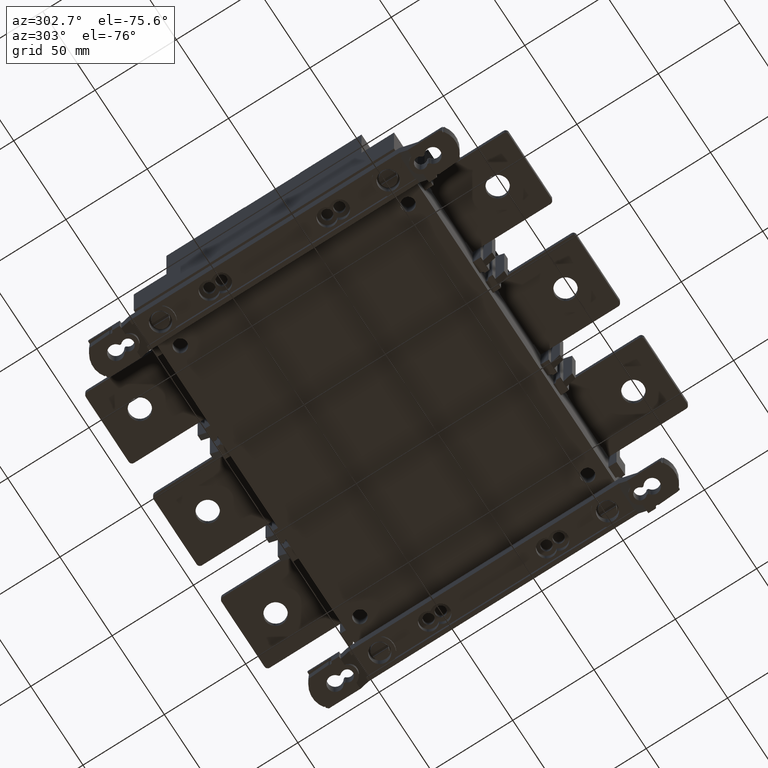
[diagram: clean part render]
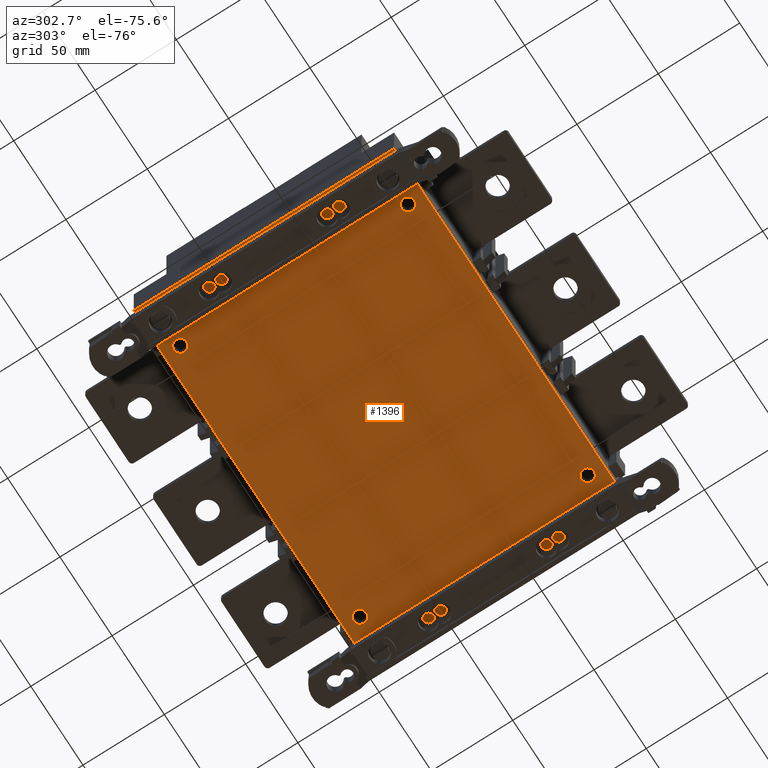
[diagram: same view with one face highlighted and labeled with its STEP entity id]
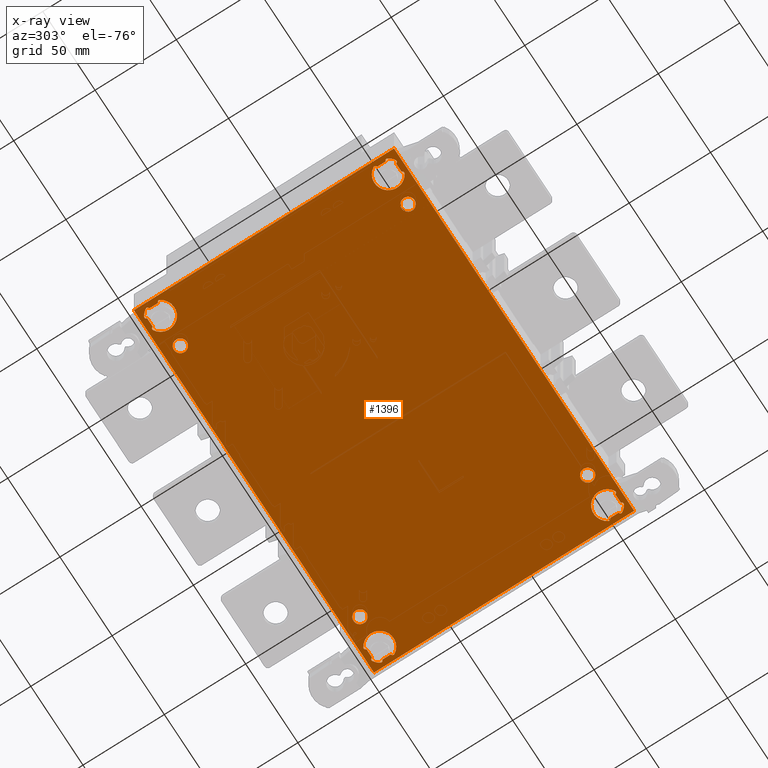
[diagram: x-ray of the same camera — body ghosted, the highlighted face saturated]
A machine part, auxiliary view. The second image highlights one B-rep face of the part: STEP entity #1396.
The next image is the same camera in x-ray: the body ghosted, the highlighted face saturated — about 0% of this face is hidden behind the body in this view.
In plain terms, the highlighted planar face has unit normal (0, 0, -1).
Its self-contained STEP definition (entity closure, byte-faithful):
#833=FACE_BOUND('',#3570,.T.);
#834=FACE_BOUND('',#3571,.T.);
#835=FACE_BOUND('',#3572,.T.);
#836=FACE_BOUND('',#3573,.T.);
#837=FACE_BOUND('',#3574,.T.);
#838=FACE_BOUND('',#3575,.T.);
#839=FACE_BOUND('',#3576,.T.);
#840=FACE_BOUND('',#3577,.T.);
#841=FACE_BOUND('',#3578,.T.);
#1396=ADVANCED_FACE('',(#833,#834,#835,#836,#837,#838,#839,#840,#841),#2049,
 .T.);
#2049=PLANE('',#15691);
#3570=EDGE_LOOP('',(#6597));
#3571=EDGE_LOOP('',(#6598,#6599,#6600,#6601));
#3572=EDGE_LOOP('',(#6602));
#3573=EDGE_LOOP('',(#6603,#6604,#6605,#6606,#6607,#6608,#6609,#6610,#6611,
#6612,#6613,#6614,#6615,#6616,#6617,#6618));
#3574=EDGE_LOOP('',(#6619,#6620,#6621,#6622,#6623,#6624,#6625,#6626,#6627,
#6628,#6629,#6630,#6631,#6632,#6633,#6634));
#3575=EDGE_LOOP('',(#6635));
#3576=EDGE_LOOP('',(#6636));
#3577=EDGE_LOOP('',(#6637,#6638,#6639,#6640,#6641,#6642,#6643,#6644,#6645,
#6646,#6647,#6648,#6649,#6650,#6651,#6652));
#3578=EDGE_LOOP('',(#6653,#6654,#6655,#6656,#6657,#6658,#6659,#6660,#6661,
#6662,#6663,#6664,#6665,#6666,#6667,#6668));
#4350=CIRCLE('',#15647,3.975);
#4351=CIRCLE('',#15648,3.975);
#4352=CIRCLE('',#15649,1.);
#4353=CIRCLE('',#15650,0.499999999999958);
#4354=CIRCLE('',#15651,0.5);
#4355=CIRCLE('',#15652,1.);
#4356=CIRCLE('',#15653,8.5);
#4357=CIRCLE('',#15654,1.);
#4358=CIRCLE('',#15655,0.499999999999956);
#4359=CIRCLE('',#15656,0.5);
#4360=CIRCLE('',#15657,1.);
#4361=CIRCLE('',#15658,8.5);
#4362=CIRCLE('',#15659,1.00000000000036);
#4363=CIRCLE('',#15660,8.5);
#4364=CIRCLE('',#15661,1.);
#4365=CIRCLE('',#15662,0.49999999999996);
#4366=CIRCLE('',#15663,0.499999999999982);
#4367=CIRCLE('',#15664,1.00000000000002);
#4368=CIRCLE('',#15665,8.5);
#4369=CIRCLE('',#15666,0.999999999999957);
#4370=CIRCLE('',#15667,0.499999999970015);
#4371=CIRCLE('',#15668,0.49999999999999);
#4372=CIRCLE('',#15669,3.975);
#4373=CIRCLE('',#15670,3.975);
#4374=CIRCLE('',#15671,1.);
#4375=CIRCLE('',#15672,8.5);
#4376=CIRCLE('',#15673,1.);
#4377=CIRCLE('',#15674,0.5);
#4378=CIRCLE('',#15675,0.499999999999956);
#4379=CIRCLE('',#15676,1.);
#4380=CIRCLE('',#15677,8.5);
#4381=CIRCLE('',#15678,1.);
#4382=CIRCLE('',#15679,0.5);
#4383=CIRCLE('',#15680,0.499999999999958);
#4384=CIRCLE('',#15681,0.49999999999999);
#4385=CIRCLE('',#15682,0.499999999970015);
#4386=CIRCLE('',#15683,0.999999999999957);
#4387=CIRCLE('',#15684,8.5);
#4388=CIRCLE('',#15685,1.00000000000002);
#4389=CIRCLE('',#15686,0.499999999999982);
#4390=CIRCLE('',#15687,0.49999999999996);
#4391=CIRCLE('',#15688,1.);
#4392=CIRCLE('',#15689,8.5);
#4393=CIRCLE('',#15690,1.00000000000036);
#6597=ORIENTED_EDGE('',*,*,#11096,.T.);
#6598=ORIENTED_EDGE('',*,*,#11097,.T.);
#6599=ORIENTED_EDGE('',*,*,#10748,.F.);
#6600=ORIENTED_EDGE('',*,*,#11098,.F.);
#6601=ORIENTED_EDGE('',*,*,#10641,.T.);
#6602=ORIENTED_EDGE('',*,*,#11099,.T.);
#6603=ORIENTED_EDGE('',*,*,#11100,.F.);
#6604=ORIENTED_EDGE('',*,*,#11101,.F.);
#6605=ORIENTED_EDGE('',*,*,#11102,.F.);
#6606=ORIENTED_EDGE('',*,*,#11103,.F.);
#6607=ORIENTED_EDGE('',*,*,#11104,.F.);
#6608=ORIENTED_EDGE('',*,*,#11105,.F.);
#6609=ORIENTED_EDGE('',*,*,#11106,.F.);
#6610=ORIENTED_EDGE('',*,*,#11107,.F.);
#6611=ORIENTED_EDGE('',*,*,#11108,.F.);
#6612=ORIENTED_EDGE('',*,*,#11109,.F.);
#6613=ORIENTED_EDGE('',*,*,#11110,.F.);
#6614=ORIENTED_EDGE('',*,*,#11111,.F.);
#6615=ORIENTED_EDGE('',*,*,#11112,.F.);
#6616=ORIENTED_EDGE('',*,*,#11113,.F.);
#6617=ORIENTED_EDGE('',*,*,#11114,.F.);
#6618=ORIENTED_EDGE('',*,*,#11115,.F.);
#6619=ORIENTED_EDGE('',*,*,#11116,.T.);
#6620=ORIENTED_EDGE('',*,*,#11117,.T.);
#6621=ORIENTED_EDGE('',*,*,#11118,.T.);
#6622=ORIENTED_EDGE('',*,*,#11119,.T.);
#6623=ORIENTED_EDGE('',*,*,#11120,.T.);
#6624=ORIENTED_EDGE('',*,*,#11121,.T.);
#6625=ORIENTED_EDGE('',*,*,#11122,.T.);
#6626=ORIENTED_EDGE('',*,*,#11123,.T.);
#6627=ORIENTED_EDGE('',*,*,#11124,.T.);
#6628=ORIENTED_EDGE('',*,*,#11125,.T.);
#6629=ORIENTED_EDGE('',*,*,#11126,.T.);
#6630=ORIENTED_EDGE('',*,*,#11127,.T.);
#6631=ORIENTED_EDGE('',*,*,#11128,.T.);
#6632=ORIENTED_EDGE('',*,*,#11129,.T.);
#6633=ORIENTED_EDGE('',*,*,#11130,.T.);
#6634=ORIENTED_EDGE('',*,*,#11131,.T.);
#6635=ORIENTED_EDGE('',*,*,#11132,.F.);
#6636=ORIENTED_EDGE('',*,*,#11133,.F.);
#6637=ORIENTED_EDGE('',*,*,#11134,.T.);
#6638=ORIENTED_EDGE('',*,*,#11135,.T.);
#6639=ORIENTED_EDGE('',*,*,#11136,.T.);
#6640=ORIENTED_EDGE('',*,*,#11137,.T.);
#6641=ORIENTED_EDGE('',*,*,#11138,.T.);
#6642=ORIENTED_EDGE('',*,*,#11139,.T.);
#6643=ORIENTED_EDGE('',*,*,#11140,.T.);
#6644=ORIENTED_EDGE('',*,*,#11141,.T.);
#6645=ORIENTED_EDGE('',*,*,#11142,.T.);
#6646=ORIENTED_EDGE('',*,*,#11143,.T.);
#6647=ORIENTED_EDGE('',*,*,#11144,.T.);
#6648=ORIENTED_EDGE('',*,*,#11145,.T.);
#6649=ORIENTED_EDGE('',*,*,#11146,.T.);
#6650=ORIENTED_EDGE('',*,*,#11147,.T.);
#6651=ORIENTED_EDGE('',*,*,#11148,.T.);
#6652=ORIENTED_EDGE('',*,*,#11149,.T.);
#6653=ORIENTED_EDGE('',*,*,#11150,.F.);
#6654=ORIENTED_EDGE('',*,*,#11151,.F.);
#6655=ORIENTED_EDGE('',*,*,#11152,.F.);
#6656=ORIENTED_EDGE('',*,*,#11153,.F.);
#6657=ORIENTED_EDGE('',*,*,#11154,.F.);
#6658=ORIENTED_EDGE('',*,*,#11155,.F.);
#6659=ORIENTED_EDGE('',*,*,#11156,.F.);
#6660=ORIENTED_EDGE('',*,*,#11157,.F.);
#6661=ORIENTED_EDGE('',*,*,#11158,.F.);
#6662=ORIENTED_EDGE('',*,*,#11159,.F.);
#6663=ORIENTED_EDGE('',*,*,#11160,.F.);
#6664=ORIENTED_EDGE('',*,*,#11161,.F.);
#6665=ORIENTED_EDGE('',*,*,#11162,.F.);
#6666=ORIENTED_EDGE('',*,*,#11163,.F.);
#6667=ORIENTED_EDGE('',*,*,#11164,.F.);
#6668=ORIENTED_EDGE('',*,*,#11165,.F.);
#9061=VERTEX_POINT('',#22038);
#9062=VERTEX_POINT('',#22040);
#9137=VERTEX_POINT('',#22246);
#9138=VERTEX_POINT('',#22248);
#9396=VERTEX_POINT('',#23108);
#9397=VERTEX_POINT('',#23112);
#9398=VERTEX_POINT('',#23114);
#9399=VERTEX_POINT('',#23115);
#9400=VERTEX_POINT('',#23117);
#9401=VERTEX_POINT('',#23119);
#9402=VERTEX_POINT('',#23121);
#9403=VERTEX_POINT('',#23123);
#9404=VERTEX_POINT('',#23125);
#9405=VERTEX_POINT('',#23127);
#9406=VERTEX_POINT('',#23129);
#9407=VERTEX_POINT('',#23131);
#9408=VERTEX_POINT('',#23133);
#9409=VERTEX_POINT('',#23135);
#9410=VERTEX_POINT('',#23137);
#9411=VERTEX_POINT('',#23139);
#9412=VERTEX_POINT('',#23141);
#9413=VERTEX_POINT('',#23143);
#9414=VERTEX_POINT('',#23146);
#9415=VERTEX_POINT('',#23147);
#9416=VERTEX_POINT('',#23149);
#9417=VERTEX_POINT('',#23151);
#9418=VERTEX_POINT('',#23153);
#9419=VERTEX_POINT('',#23155);
#9420=VERTEX_POINT('',#23157);
#9421=VERTEX_POINT('',#23159);
#9422=VERTEX_POINT('',#23161);
#9423=VERTEX_POINT('',#23163);
#9424=VERTEX_POINT('',#23165);
#9425=VERTEX_POINT('',#23167);
#9426=VERTEX_POINT('',#23169);
#9427=VERTEX_POINT('',#23171);
#9428=VERTEX_POINT('',#23173);
#9429=VERTEX_POINT('',#23175);
#9430=VERTEX_POINT('',#23178);
#9431=VERTEX_POINT('',#23180);
#9432=VERTEX_POINT('',#23182);
#9433=VERTEX_POINT('',#23183);
#9434=VERTEX_POINT('',#23185);
#9435=VERTEX_POINT('',#23187);
#9436=VERTEX_POINT('',#23189);
#9437=VERTEX_POINT('',#23191);
#9438=VERTEX_POINT('',#23193);
#9439=VERTEX_POINT('',#23195);
#9440=VERTEX_POINT('',#23197);
#9441=VERTEX_POINT('',#23199);
#9442=VERTEX_POINT('',#23201);
#9443=VERTEX_POINT('',#23203);
#9444=VERTEX_POINT('',#23205);
#9445=VERTEX_POINT('',#23207);
#9446=VERTEX_POINT('',#23209);
#9447=VERTEX_POINT('',#23211);
#9448=VERTEX_POINT('',#23214);
#9449=VERTEX_POINT('',#23215);
#9450=VERTEX_POINT('',#23217);
#9451=VERTEX_POINT('',#23219);
#9452=VERTEX_POINT('',#23221);
#9453=VERTEX_POINT('',#23223);
#9454=VERTEX_POINT('',#23225);
#9455=VERTEX_POINT('',#23227);
#9456=VERTEX_POINT('',#23229);
#9457=VERTEX_POINT('',#23231);
#9458=VERTEX_POINT('',#23233);
#9459=VERTEX_POINT('',#23235);
#9460=VERTEX_POINT('',#23237);
#9461=VERTEX_POINT('',#23239);
#9462=VERTEX_POINT('',#23241);
#9463=VERTEX_POINT('',#23243);
#10641=EDGE_CURVE('',#9062,#9061,#12374,.T.);
#10748=EDGE_CURVE('',#9137,#9138,#12476,.T.);
#11096=EDGE_CURVE('',#9396,#9396,#4350,.T.);
#11097=EDGE_CURVE('',#9061,#9138,#12715,.T.);
#11098=EDGE_CURVE('',#9062,#9137,#12716,.T.);
#11099=EDGE_CURVE('',#9397,#9397,#4351,.T.);
#11100=EDGE_CURVE('',#9398,#9399,#4352,.T.);
#11101=EDGE_CURVE('',#9400,#9398,#12717,.T.);
#11102=EDGE_CURVE('',#9401,#9400,#4353,.T.);
#11103=EDGE_CURVE('',#9402,#9401,#12718,.T.);
#11104=EDGE_CURVE('',#9403,#9402,#4354,.T.);
#11105=EDGE_CURVE('',#9404,#9403,#12719,.T.);
#11106=EDGE_CURVE('',#9405,#9404,#4355,.T.);
#11107=EDGE_CURVE('',#9406,#9405,#4356,.T.);
#11108=EDGE_CURVE('',#9407,#9406,#4357,.T.);
#11109=EDGE_CURVE('',#9408,#9407,#12720,.T.);
#11110=EDGE_CURVE('',#9409,#9408,#4358,.T.);
#11111=EDGE_CURVE('',#9410,#9409,#12721,.T.);
#11112=EDGE_CURVE('',#9411,#9410,#4359,.T.);
#11113=EDGE_CURVE('',#9412,#9411,#12722,.T.);
#11114=EDGE_CURVE('',#9413,#9412,#4360,.T.);
#11115=EDGE_CURVE('',#9399,#9413,#4361,.T.);
#11116=EDGE_CURVE('',#9414,#9415,#12723,.T.);
#11117=EDGE_CURVE('',#9415,#9416,#4362,.T.);
#11118=EDGE_CURVE('',#9416,#9417,#4363,.T.);
#11119=EDGE_CURVE('',#9417,#9418,#4364,.T.);
#11120=EDGE_CURVE('',#9418,#9419,#12724,.T.);
#11121=EDGE_CURVE('',#9419,#9420,#4365,.T.);
#11122=EDGE_CURVE('',#9420,#9421,#12725,.T.);
#11123=EDGE_CURVE('',#9421,#9422,#4366,.T.);
#11124=EDGE_CURVE('',#9422,#9423,#12726,.T.);
#11125=EDGE_CURVE('',#9423,#9424,#4367,.T.);
#11126=EDGE_CURVE('',#9424,#9425,#4368,.T.);
#11127=EDGE_CURVE('',#9425,#9426,#4369,.T.);
#11128=EDGE_CURVE('',#9426,#9427,#12727,.T.);
#11129=EDGE_CURVE('',#9427,#9428,#4370,.T.);
#11130=EDGE_CURVE('',#9428,#9429,#12728,.T.);
#11131=EDGE_CURVE('',#9429,#9414,#4371,.T.);
#11132=EDGE_CURVE('',#9430,#9430,#4372,.T.);
#11133=EDGE_CURVE('',#9431,#9431,#4373,.T.);
#11134=EDGE_CURVE('',#9432,#9433,#4374,.T.);
#11135=EDGE_CURVE('',#9433,#9434,#4375,.T.);
#11136=EDGE_CURVE('',#9434,#9435,#4376,.T.);
#11137=EDGE_CURVE('',#9435,#9436,#12729,.T.);
#11138=EDGE_CURVE('',#9436,#9437,#4377,.T.);
#11139=EDGE_CURVE('',#9437,#9438,#12730,.T.);
#11140=EDGE_CURVE('',#9438,#9439,#4378,.T.);
#11141=EDGE_CURVE('',#9439,#9440,#12731,.T.);
#11142=EDGE_CURVE('',#9440,#9441,#4379,.T.);
#11143=EDGE_CURVE('',#9441,#9442,#4380,.T.);
#11144=EDGE_CURVE('',#9442,#9443,#4381,.T.);
#11145=EDGE_CURVE('',#9443,#9444,#12732,.T.);
#11146=EDGE_CURVE('',#9444,#9445,#4382,.T.);
#11147=EDGE_CURVE('',#9445,#9446,#12733,.T.);
#11148=EDGE_CURVE('',#9446,#9447,#4383,.T.);
#11149=EDGE_CURVE('',#9447,#9432,#12734,.T.);
#11150=EDGE_CURVE('',#9448,#9449,#12735,.T.);
#11151=EDGE_CURVE('',#9450,#9448,#4384,.T.);
#11152=EDGE_CURVE('',#9451,#9450,#12736,.T.);
#11153=EDGE_CURVE('',#9452,#9451,#4385,.T.);
#11154=EDGE_CURVE('',#9453,#9452,#12737,.T.);
#11155=EDGE_CURVE('',#9454,#9453,#4386,.T.);
#11156=EDGE_CURVE('',#9455,#9454,#4387,.T.);
#11157=EDGE_CURVE('',#9456,#9455,#4388,.T.);
#11158=EDGE_CURVE('',#9457,#9456,#12738,.T.);
#11159=EDGE_CURVE('',#9458,#9457,#4389,.T.);
#11160=EDGE_CURVE('',#9459,#9458,#12739,.T.);
#11161=EDGE_CURVE('',#9460,#9459,#4390,.T.);
#11162=EDGE_CURVE('',#9461,#9460,#12740,.T.);
#11163=EDGE_CURVE('',#9462,#9461,#4391,.T.);
#11164=EDGE_CURVE('',#9463,#9462,#4392,.T.);
#11165=EDGE_CURVE('',#9449,#9463,#4393,.T.);
#12374=LINE('',#22039,#13802);
#12476=LINE('',#22247,#13904);
#12715=LINE('',#23109,#14143);
#12716=LINE('',#23110,#14144);
#12717=LINE('',#23116,#14145);
#12718=LINE('',#23120,#14146);
#12719=LINE('',#23124,#14147);
#12720=LINE('',#23132,#14148);
#12721=LINE('',#23136,#14149);
#12722=LINE('',#23140,#14150);
#12723=LINE('',#23145,#14151);
#12724=LINE('',#23154,#14152);
#12725=LINE('',#23158,#14153);
#12726=LINE('',#23162,#14154);
#12727=LINE('',#23170,#14155);
#12728=LINE('',#23174,#14156);
#12729=LINE('',#23188,#14157);
#12730=LINE('',#23192,#14158);
#12731=LINE('',#23196,#14159);
#12732=LINE('',#23204,#14160);
#12733=LINE('',#23208,#14161);
#12734=LINE('',#23212,#14162);
#12735=LINE('',#23213,#14163);
#12736=LINE('',#23218,#14164);
#12737=LINE('',#23222,#14165);
#12738=LINE('',#23230,#14166);
#12739=LINE('',#23234,#14167);
#12740=LINE('',#23238,#14168);
#13802=VECTOR('',#17592,1.);
#13904=VECTOR('',#17754,1.);
#14143=VECTOR('',#18431,1.);
#14144=VECTOR('',#18432,1.);
#14145=VECTOR('',#18437,1.);
#14146=VECTOR('',#18440,1.);
#14147=VECTOR('',#18443,1.);
#14148=VECTOR('',#18450,1.);
#14149=VECTOR('',#18453,1.);
#14150=VECTOR('',#18456,1.);
#14151=VECTOR('',#18461,1.);
#14152=VECTOR('',#18468,1.);
#14153=VECTOR('',#18471,1.);
#14154=VECTOR('',#18474,1.);
#14155=VECTOR('',#18481,1.);
#14156=VECTOR('',#18484,1.);
#14157=VECTOR('',#18497,1.);
#14158=VECTOR('',#18500,1.);
#14159=VECTOR('',#18503,1.);
#14160=VECTOR('',#18510,1.);
#14161=VECTOR('',#18513,1.);
#14162=VECTOR('',#18516,1.);
#14163=VECTOR('',#18517,1.);
#14164=VECTOR('',#18520,1.);
#14165=VECTOR('',#18523,1.);
#14166=VECTOR('',#18530,1.);
#14167=VECTOR('',#18533,1.);
#14168=VECTOR('',#18536,1.);
#15647=AXIS2_PLACEMENT_3D('',#23107,#18429,#18430);
#15648=AXIS2_PLACEMENT_3D('',#23111,#18433,#18434);
#15649=AXIS2_PLACEMENT_3D('',#23113,#18435,#18436);
#15650=AXIS2_PLACEMENT_3D('',#23118,#18438,#18439);
#15651=AXIS2_PLACEMENT_3D('',#23122,#18441,#18442);
#15652=AXIS2_PLACEMENT_3D('',#23126,#18444,#18445);
#15653=AXIS2_PLACEMENT_3D('',#23128,#18446,#18447);
#15654=AXIS2_PLACEMENT_3D('',#23130,#18448,#18449);
#15655=AXIS2_PLACEMENT_3D('',#23134,#18451,#18452);
#15656=AXIS2_PLACEMENT_3D('',#23138,#18454,#18455);
#15657=AXIS2_PLACEMENT_3D('',#23142,#18457,#18458);
#15658=AXIS2_PLACEMENT_3D('',#23144,#18459,#18460);
#15659=AXIS2_PLACEMENT_3D('',#23148,#18462,#18463);
#15660=AXIS2_PLACEMENT_3D('',#23150,#18464,#18465);
#15661=AXIS2_PLACEMENT_3D('',#23152,#18466,#18467);
#15662=AXIS2_PLACEMENT_3D('',#23156,#18469,#18470);
#15663=AXIS2_PLACEMENT_3D('',#23160,#18472,#18473);
#15664=AXIS2_PLACEMENT_3D('',#23164,#18475,#18476);
#15665=AXIS2_PLACEMENT_3D('',#23166,#18477,#18478);
#15666=AXIS2_PLACEMENT_3D('',#23168,#18479,#18480);
#15667=AXIS2_PLACEMENT_3D('',#23172,#18482,#18483);
#15668=AXIS2_PLACEMENT_3D('',#23176,#18485,#18486);
#15669=AXIS2_PLACEMENT_3D('',#23177,#18487,#18488);
#15670=AXIS2_PLACEMENT_3D('',#23179,#18489,#18490);
#15671=AXIS2_PLACEMENT_3D('',#23181,#18491,#18492);
#15672=AXIS2_PLACEMENT_3D('',#23184,#18493,#18494);
#15673=AXIS2_PLACEMENT_3D('',#23186,#18495,#18496);
#15674=AXIS2_PLACEMENT_3D('',#23190,#18498,#18499);
#15675=AXIS2_PLACEMENT_3D('',#23194,#18501,#18502);
#15676=AXIS2_PLACEMENT_3D('',#23198,#18504,#18505);
#15677=AXIS2_PLACEMENT_3D('',#23200,#18506,#18507);
#15678=AXIS2_PLACEMENT_3D('',#23202,#18508,#18509);
#15679=AXIS2_PLACEMENT_3D('',#23206,#18511,#18512);
#15680=AXIS2_PLACEMENT_3D('',#23210,#18514,#18515);
#15681=AXIS2_PLACEMENT_3D('',#23216,#18518,#18519);
#15682=AXIS2_PLACEMENT_3D('',#23220,#18521,#18522);
#15683=AXIS2_PLACEMENT_3D('',#23224,#18524,#18525);
#15684=AXIS2_PLACEMENT_3D('',#23226,#18526,#18527);
#15685=AXIS2_PLACEMENT_3D('',#23228,#18528,#18529);
#15686=AXIS2_PLACEMENT_3D('',#23232,#18531,#18532);
#15687=AXIS2_PLACEMENT_3D('',#23236,#18534,#18535);
#15688=AXIS2_PLACEMENT_3D('',#23240,#18537,#18538);
#15689=AXIS2_PLACEMENT_3D('',#23242,#18539,#18540);
#15690=AXIS2_PLACEMENT_3D('',#23244,#18541,#18542);
#15691=AXIS2_PLACEMENT_3D('',#23245,#18543,#18544);
#17592=DIRECTION('',(-1.,2.83589576942296E-015,0.));
#17754=DIRECTION('',(-1.,-2.83589576942296E-015,0.));
#18429=DIRECTION('',(0.,0.,1.));
#18430=DIRECTION('',(-1.,0.,0.));
#18431=DIRECTION('',(0.,1.,0.));
#18432=DIRECTION('',(0.,1.,0.));
#18433=DIRECTION('',(0.,0.,1.));
#18434=DIRECTION('',(-1.,0.,0.));
#18435=DIRECTION('',(0.,0.,-1.));
#18436=DIRECTION('',(1.,0.,0.));
#18437=DIRECTION('',(-0.925446770044478,0.37887765283036,0.));
#18438=DIRECTION('',(0.,0.,1.));
#18439=DIRECTION('',(1.,0.,0.));
#18440=DIRECTION('',(0.,1.,0.));
#18441=DIRECTION('',(0.,0.,1.));
#18442=DIRECTION('',(1.,0.,0.));
#18443=DIRECTION('',(0.925446770044578,0.378877652830116,0.));
#18444=DIRECTION('',(0.,0.,-1.));
#18445=DIRECTION('',(1.,0.,0.));
#18446=DIRECTION('',(0.,0.,-1.));
#18447=DIRECTION('',(0.999999999999999,0.,0.));
#18448=DIRECTION('',(0.,0.,-1.));
#18449=DIRECTION('',(1.,0.,0.));
#18450=DIRECTION('',(-0.378877652855482,-0.925446770034193,0.));
#18451=DIRECTION('',(0.,0.,1.));
#18452=DIRECTION('',(1.00000000000001,0.,0.));
#18453=DIRECTION('',(-1.,-9.32439092601039E-017,0.));
#18454=DIRECTION('',(0.,0.,1.));
#18455=DIRECTION('',(1.,0.,0.));
#18456=DIRECTION('',(-0.37887765280499,0.925446770054865,0.));
#18457=DIRECTION('',(0.,0.,-1.));
#18458=DIRECTION('',(1.,0.,0.));
#18459=DIRECTION('',(0.,0.,-1.));
#18460=DIRECTION('',(0.999999999999999,0.,0.));
#18461=DIRECTION('',(0.925446770054307,0.378877652806351,0.));
#18462=DIRECTION('',(0.,0.,1.));
#18463=DIRECTION('',(1.,0.,0.));
#18464=DIRECTION('',(0.,0.,1.));
#18465=DIRECTION('',(1.,0.,0.));
#18466=DIRECTION('',(0.,0.,1.));
#18467=DIRECTION('',(1.,0.,0.));
#18468=DIRECTION('',(0.378877652938271,0.925446770000299,0.));
#18469=DIRECTION('',(0.,0.,-1.));
#18470=DIRECTION('',(1.00000000000003,0.,0.));
#18471=DIRECTION('',(1.,-1.86487818520208E-016,0.));
#18472=DIRECTION('',(0.,0.,-1.));
#18473=DIRECTION('',(0.999999999999981,0.,0.));
#18474=DIRECTION('',(0.378877652756122,-0.925446770074871,0.));
#18475=DIRECTION('',(0.,0.,1.));
#18476=DIRECTION('',(1.,0.,0.));
#18477=DIRECTION('',(0.,0.,1.));
#18478=DIRECTION('',(1.,0.,0.));
#18479=DIRECTION('',(0.,0.,1.));
#18480=DIRECTION('',(0.999999999999988,0.,0.));
#18481=DIRECTION('',(-0.925446770054402,0.378877652806119,0.));
#18482=DIRECTION('',(0.,0.,-1.));
#18483=DIRECTION('',(1.00000000000002,0.,0.));
#18484=DIRECTION('',(0.,1.,0.));
#18485=DIRECTION('',(0.,0.,-1.));
#18486=DIRECTION('',(1.00000000000002,0.,0.));
#18487=DIRECTION('',(0.,0.,-1.));
#18488=DIRECTION('',(-1.,0.,0.));
#18489=DIRECTION('',(0.,0.,-1.));
#18490=DIRECTION('',(-1.,0.,0.));
#18491=DIRECTION('',(0.,0.,1.));
#18492=DIRECTION('',(1.,0.,0.));
#18493=DIRECTION('',(0.,0.,1.));
#18494=DIRECTION('',(0.999999999999999,0.,0.));
#18495=DIRECTION('',(0.,0.,1.));
#18496=DIRECTION('',(1.,0.,0.));
#18497=DIRECTION('',(-0.37887765280499,-0.925446770054865,0.));
#18498=DIRECTION('',(0.,0.,-1.));
#18499=DIRECTION('',(1.,0.,0.));
#18500=DIRECTION('',(-1.,9.32439092601039E-017,0.));
#18501=DIRECTION('',(0.,0.,-1.));
#18502=DIRECTION('',(1.00000000000001,0.,0.));
#18503=DIRECTION('',(-0.378877652855482,0.925446770034193,0.));
#18504=DIRECTION('',(0.,0.,1.));
#18505=DIRECTION('',(1.,0.,0.));
#18506=DIRECTION('',(0.,0.,1.));
#18507=DIRECTION('',(0.999999999999999,0.,0.));
#18508=DIRECTION('',(0.,0.,1.));
#18509=DIRECTION('',(1.,0.,0.));
#18510=DIRECTION('',(0.925446770044578,-0.378877652830116,0.));
#18511=DIRECTION('',(0.,0.,-1.));
#18512=DIRECTION('',(1.,0.,0.));
#18513=DIRECTION('',(0.,-1.,0.));
#18514=DIRECTION('',(0.,0.,-1.));
#18515=DIRECTION('',(1.,0.,0.));
#18516=DIRECTION('',(-0.925446770044478,-0.37887765283036,0.));
#18517=DIRECTION('',(0.925446770054307,-0.378877652806351,0.));
#18518=DIRECTION('',(0.,0.,1.));
#18519=DIRECTION('',(1.00000000000002,0.,0.));
#18520=DIRECTION('',(0.,-1.,0.));
#18521=DIRECTION('',(0.,0.,1.));
#18522=DIRECTION('',(1.00000000000002,0.,0.));
#18523=DIRECTION('',(-0.925446770054402,-0.378877652806119,0.));
#18524=DIRECTION('',(0.,0.,-1.));
#18525=DIRECTION('',(0.999999999999988,0.,0.));
#18526=DIRECTION('',(0.,0.,-1.));
#18527=DIRECTION('',(1.,0.,0.));
#18528=DIRECTION('',(0.,0.,-1.));
#18529=DIRECTION('',(1.,0.,0.));
#18530=DIRECTION('',(0.378877652756122,0.925446770074871,0.));
#18531=DIRECTION('',(0.,0.,1.));
#18532=DIRECTION('',(0.999999999999981,0.,0.));
#18533=DIRECTION('',(1.,1.86487818520208E-016,0.));
#18534=DIRECTION('',(0.,0.,1.));
#18535=DIRECTION('',(1.00000000000003,0.,0.));
#18536=DIRECTION('',(0.378877652938271,-0.925446770000299,0.));
#18537=DIRECTION('',(0.,0.,-1.));
#18538=DIRECTION('',(1.,0.,0.));
#18539=DIRECTION('',(0.,0.,-1.));
#18540=DIRECTION('',(1.,0.,0.));
#18541=DIRECTION('',(0.,0.,-1.));
#18542=DIRECTION('',(1.,0.,0.));
#18543=DIRECTION('',(0.,0.,-1.));
#18544=DIRECTION('',(0.,1.,0.));
#22038=CARTESIAN_POINT('',(-85.,-110.,-108.500000000001));
#22039=CARTESIAN_POINT('',(60.0001297240994,-110.000000000001,-108.500000000001));
#22040=CARTESIAN_POINT('',(145.,-110.000000000001,-108.500000000001));
#22246=CARTESIAN_POINT('',(145.,50.0000000000009,-108.500000000001));
#22247=CARTESIAN_POINT('',(-145.,50.,-108.500000000001));
#22248=CARTESIAN_POINT('',(-85.,50.0000000000002,-108.500000000001));
#23107=CARTESIAN_POINT('',(116.,-100.,-108.500000000001));
#23108=CARTESIAN_POINT('',(112.025,-100.,-108.500000000001));
#23109=CARTESIAN_POINT('',(-85.,-93.5,-108.500000000001));
#23110=CARTESIAN_POINT('',(145.,-101.,-108.500000000001));
#23111=CARTESIAN_POINT('',(-56.,-100.,-108.500000000001));
#23112=CARTESIAN_POINT('',(-59.975,-100.,-108.500000000001));
#23113=CARTESIAN_POINT('',(-81.499999999999,-96.2583426132243,-108.500000000001));
#23114=CARTESIAN_POINT('',(-81.8788776528054,-97.1837893832786,-108.500000000001));
#23115=CARTESIAN_POINT('',(-82.3666666666655,-95.7594549616542,-108.500000000001));
#23116=CARTESIAN_POINT('',(-81.8105611735969,-97.2117581310553,-108.500000000001));
#23117=CARTESIAN_POINT('',(-81.8105611735969,-97.2117581310553,-108.500000000001));
#23118=CARTESIAN_POINT('',(-82.,-97.6744815160825,-108.500000000001));
#23119=CARTESIAN_POINT('',(-81.5,-97.6744815160825,-108.500000000001));
#23120=CARTESIAN_POINT('',(-81.5,-102.325518483917,-108.500000000001));
#23121=CARTESIAN_POINT('',(-81.5,-102.325518483917,-108.500000000001));
#23122=CARTESIAN_POINT('',(-82.,-102.325518483917,-108.500000000001));
#23123=CARTESIAN_POINT('',(-81.8105611735969,-102.788241868945,-108.500000000001));
#23124=CARTESIAN_POINT('',(-81.8788776528054,-102.816210616721,-108.500000000001));
#23125=CARTESIAN_POINT('',(-81.8788776528054,-102.816210616721,-108.500000000001));
#23126=CARTESIAN_POINT('',(-81.499999999999,-103.741657386776,-108.500000000001));
#23127=CARTESIAN_POINT('',(-82.3666666666655,-104.240545038346,-108.500000000001));
#23128=CARTESIAN_POINT('',(-75.,-100.,-108.500000000001));
#23129=CARTESIAN_POINT('',(-79.2405450383478,-107.366666666664,-108.500000000001));
#23130=CARTESIAN_POINT('',(-78.7416573867775,-106.499999999998,-108.500000000001));
#23131=CARTESIAN_POINT('',(-77.8162106167233,-106.878877652805,-108.500000000001));
#23132=CARTESIAN_POINT('',(-77.7882418689447,-106.810561173597,-108.500000000001));
#23133=CARTESIAN_POINT('',(-77.7882418689447,-106.810561173597,-108.500000000001));
#23134=CARTESIAN_POINT('',(-77.3255184839176,-107.,-108.500000000001));
#23135=CARTESIAN_POINT('',(-77.3255184839176,-106.5,-108.500000000001));
#23136=CARTESIAN_POINT('',(-72.6744815160825,-106.5,-108.500000000001));
#23137=CARTESIAN_POINT('',(-72.6744815160825,-106.5,-108.500000000001));
#23138=CARTESIAN_POINT('',(-72.6744815160825,-107.,-108.500000000001));
#23139=CARTESIAN_POINT('',(-72.2117581310553,-106.810561173597,-108.500000000001));
#23140=CARTESIAN_POINT('',(-72.1837893832805,-106.878877652806,-108.500000000001));
#23141=CARTESIAN_POINT('',(-72.1837893832805,-106.878877652806,-108.500000000001));
#23142=CARTESIAN_POINT('',(-71.2583426132261,-106.5,-108.500000000001));
#23143=CARTESIAN_POINT('',(-70.7594549616562,-107.366666666667,-108.500000000001));
#23144=CARTESIAN_POINT('',(-75.,-100.,-108.500000000001));
#23145=CARTESIAN_POINT('',(141.810561173625,-97.2117581310431,-108.500000000001));
#23146=CARTESIAN_POINT('',(141.810561173625,-97.2117581310431,-108.500000000001));
#23147=CARTESIAN_POINT('',(141.878877652806,-97.18378938328,-108.500000000001));
#23148=CARTESIAN_POINT('',(141.5,-96.2583426132253,-108.500000000001));
#23149=CARTESIAN_POINT('',(142.366666666666,-95.7594549616555,-108.500000000001));
#23150=CARTESIAN_POINT('',(135.,-100.,-108.500000000001));
#23151=CARTESIAN_POINT('',(130.759454961642,-107.366666666659,-108.500000000001));
#23152=CARTESIAN_POINT('',(131.258342613214,-106.499999999993,-108.500000000001));
#23153=CARTESIAN_POINT('',(132.183789383267,-106.878877652802,-108.500000000001));
#23154=CARTESIAN_POINT('',(132.183789383267,-106.878877652802,-108.500000000001));
#23155=CARTESIAN_POINT('',(132.211758131052,-106.810561173596,-108.500000000001));
#23156=CARTESIAN_POINT('',(132.674481516079,-107.,-108.500000000001));
#23157=CARTESIAN_POINT('',(132.674481516079,-106.5,-108.500000000001));
#23158=CARTESIAN_POINT('',(132.674481516079,-106.5,-108.500000000001));
#23159=CARTESIAN_POINT('',(137.325518483914,-106.5,-108.500000000001));
#23160=CARTESIAN_POINT('',(137.325518483914,-107.,-108.500000000001));
#23161=CARTESIAN_POINT('',(137.788241868941,-106.810561173597,-108.500000000001));
#23162=CARTESIAN_POINT('',(137.788241868941,-106.810561173597,-108.500000000001));
#23163=CARTESIAN_POINT('',(137.816210616713,-106.878877652809,-108.500000000001));
#23164=CARTESIAN_POINT('',(138.741657386767,-106.500000000004,-108.500000000001));
#23165=CARTESIAN_POINT('',(139.240545038336,-107.366666666671,-108.500000000001));
#23166=CARTESIAN_POINT('',(135.,-100.,-108.500000000001));
#23167=CARTESIAN_POINT('',(142.366666666666,-104.240545038344,-108.500000000001));
#23168=CARTESIAN_POINT('',(141.5,-103.741657386775,-108.500000000001));
#23169=CARTESIAN_POINT('',(141.878877652806,-102.81621061672,-108.500000000001));
#23170=CARTESIAN_POINT('',(141.878877652806,-102.81621061672,-108.500000000001));
#23171=CARTESIAN_POINT('',(141.810561173625,-102.788241868957,-108.500000000001));
#23172=CARTESIAN_POINT('',(142.,-102.325518483917,-108.500000000001));
#23173=CARTESIAN_POINT('',(141.500000000029,-102.32551848393,-108.500000000001));
#23174=CARTESIAN_POINT('',(141.500000000029,-102.32551848393,-108.500000000001));
#23175=CARTESIAN_POINT('',(141.500000000029,-97.6744815160703,-108.500000000001));
#23176=CARTESIAN_POINT('',(142.000000000028,-97.6744815160703,-108.500000000001));
#23177=CARTESIAN_POINT('',(116.,40.,-108.500000000001));
#23178=CARTESIAN_POINT('',(112.025,40.,-108.500000000001));
#23179=CARTESIAN_POINT('',(-56.,40.,-108.500000000001));
#23180=CARTESIAN_POINT('',(-59.975,40.,-108.500000000001));
#23181=CARTESIAN_POINT('',(-81.499999999999,36.2583426132242,-108.500000000001));
#23182=CARTESIAN_POINT('',(-81.8788776528054,37.1837893832786,-108.500000000001));
#23183=CARTESIAN_POINT('',(-82.3666666666655,35.7594549616542,-108.500000000001));
#23184=CARTESIAN_POINT('',(-75.,40.,-108.500000000001));
#23185=CARTESIAN_POINT('',(-70.7594549616562,47.3666666666665,-108.500000000001));
#23186=CARTESIAN_POINT('',(-71.2583426132261,46.5,-108.500000000001));
#23187=CARTESIAN_POINT('',(-72.1837893832805,46.878877652806,-108.500000000001));
#23188=CARTESIAN_POINT('',(-72.1837893832805,46.878877652806,-108.500000000001));
#23189=CARTESIAN_POINT('',(-72.2117581310553,46.810561173597,-108.500000000001));
#23190=CARTESIAN_POINT('',(-72.6744815160825,47.,-108.500000000001));
#23191=CARTESIAN_POINT('',(-72.6744815160825,46.5,-108.500000000001));
#23192=CARTESIAN_POINT('',(-72.6744815160825,46.5,-108.500000000001));
#23193=CARTESIAN_POINT('',(-77.3255184839176,46.5,-108.500000000001));
#23194=CARTESIAN_POINT('',(-77.3255184839176,47.,-108.500000000001));
#23195=CARTESIAN_POINT('',(-77.7882418689447,46.810561173597,-108.500000000001));
#23196=CARTESIAN_POINT('',(-77.7882418689447,46.810561173597,-108.500000000001));
#23197=CARTESIAN_POINT('',(-77.8162106167233,46.8788776528045,-108.500000000001));
#23198=CARTESIAN_POINT('',(-78.7416573867775,46.5,-108.500000000001));
#23199=CARTESIAN_POINT('',(-79.2405450383478,47.3666666666645,-108.500000000001));
#23200=CARTESIAN_POINT('',(-75.,40.,-108.500000000001));
#23201=CARTESIAN_POINT('',(-82.3666666666655,44.240545038346,-108.500000000001));
#23202=CARTESIAN_POINT('',(-81.499999999999,43.7416573867755,-108.500000000001));
#23203=CARTESIAN_POINT('',(-81.8788776528054,42.8162106167215,-108.500000000001));
#23204=CARTESIAN_POINT('',(-81.8788776528054,42.8162106167215,-108.500000000001));
#23205=CARTESIAN_POINT('',(-81.8105611735969,42.788241868945,-108.500000000001));
#23206=CARTESIAN_POINT('',(-82.,42.3255184839175,-108.500000000001));
#23207=CARTESIAN_POINT('',(-81.5,42.3255184839175,-108.500000000001));
#23208=CARTESIAN_POINT('',(-81.5,42.3255184839175,-108.500000000001));
#23209=CARTESIAN_POINT('',(-81.5,37.6744815160825,-108.500000000001));
#23210=CARTESIAN_POINT('',(-82.,37.6744815160825,-108.500000000001));
#23211=CARTESIAN_POINT('',(-81.8105611735969,37.2117581310552,-108.500000000001));
#23212=CARTESIAN_POINT('',(-81.8105611735969,37.2117581310552,-108.500000000001));
#23213=CARTESIAN_POINT('',(141.810561173625,37.211758131043,-108.500000000001));
#23214=CARTESIAN_POINT('',(141.810561173625,37.211758131043,-108.500000000001));
#23215=CARTESIAN_POINT('',(141.878877652806,37.18378938328,-108.500000000001));
#23216=CARTESIAN_POINT('',(142.000000000028,37.6744815160702,-108.500000000001));
#23217=CARTESIAN_POINT('',(141.500000000029,37.6744815160702,-108.500000000001));
#23218=CARTESIAN_POINT('',(141.500000000029,42.3255184839295,-108.500000000001));
#23219=CARTESIAN_POINT('',(141.500000000029,42.3255184839295,-108.500000000001));
#23220=CARTESIAN_POINT('',(142.,42.3255184839175,-108.500000000001));
#23221=CARTESIAN_POINT('',(141.810561173625,42.788241868957,-108.500000000001));
#23222=CARTESIAN_POINT('',(141.878877652806,42.81621061672,-108.500000000001));
#23223=CARTESIAN_POINT('',(141.878877652806,42.8162106167205,-108.500000000001));
#23224=CARTESIAN_POINT('',(141.5,43.7416573867745,-108.500000000001));
#23225=CARTESIAN_POINT('',(142.366666666666,44.240545038344,-108.500000000001));
#23226=CARTESIAN_POINT('',(135.,40.,-108.500000000001));
#23227=CARTESIAN_POINT('',(139.240545038336,47.366666666671,-108.500000000001));
#23228=CARTESIAN_POINT('',(138.741657386767,46.5000000000035,-108.500000000001));
#23229=CARTESIAN_POINT('',(137.816210616713,46.878877652809,-108.500000000001));
#23230=CARTESIAN_POINT('',(137.788241868941,46.810561173597,-108.500000000001));
#23231=CARTESIAN_POINT('',(137.788241868941,46.810561173597,-108.500000000001));
#23232=CARTESIAN_POINT('',(137.325518483914,47.,-108.500000000001));
#23233=CARTESIAN_POINT('',(137.325518483914,46.5,-108.500000000001));
#23234=CARTESIAN_POINT('',(132.674481516079,46.5,-108.500000000001));
#23235=CARTESIAN_POINT('',(132.674481516079,46.5,-108.500000000001));
#23236=CARTESIAN_POINT('',(132.674481516079,47.,-108.500000000001));
#23237=CARTESIAN_POINT('',(132.211758131052,46.810561173596,-108.500000000001));
#23238=CARTESIAN_POINT('',(132.183789383267,46.8788776528025,-108.500000000001));
#23239=CARTESIAN_POINT('',(132.183789383267,46.8788776528025,-108.500000000001));
#23240=CARTESIAN_POINT('',(131.258342613214,46.499999999993,-108.500000000001));
#23241=CARTESIAN_POINT('',(130.759454961642,47.3666666666585,-108.500000000001));
#23242=CARTESIAN_POINT('',(135.,40.,-108.500000000001));
#23243=CARTESIAN_POINT('',(142.366666666666,35.7594549616554,-108.500000000001));
#23244=CARTESIAN_POINT('',(141.5,36.2583426132252,-108.500000000001));
#23245=CARTESIAN_POINT('',(60.0001297240994,-93.5,-108.500000000001));